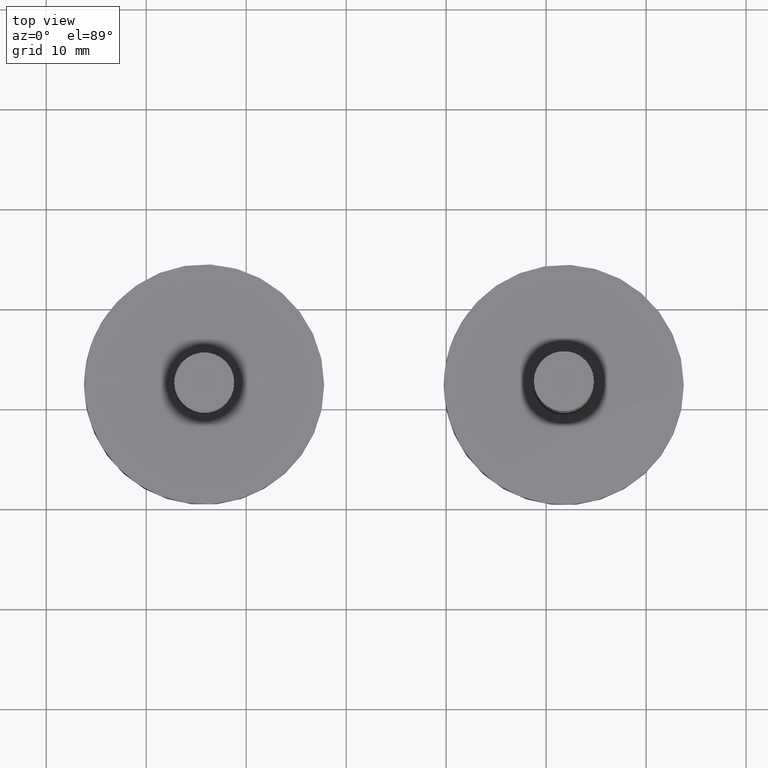
[diagram: clean part render]
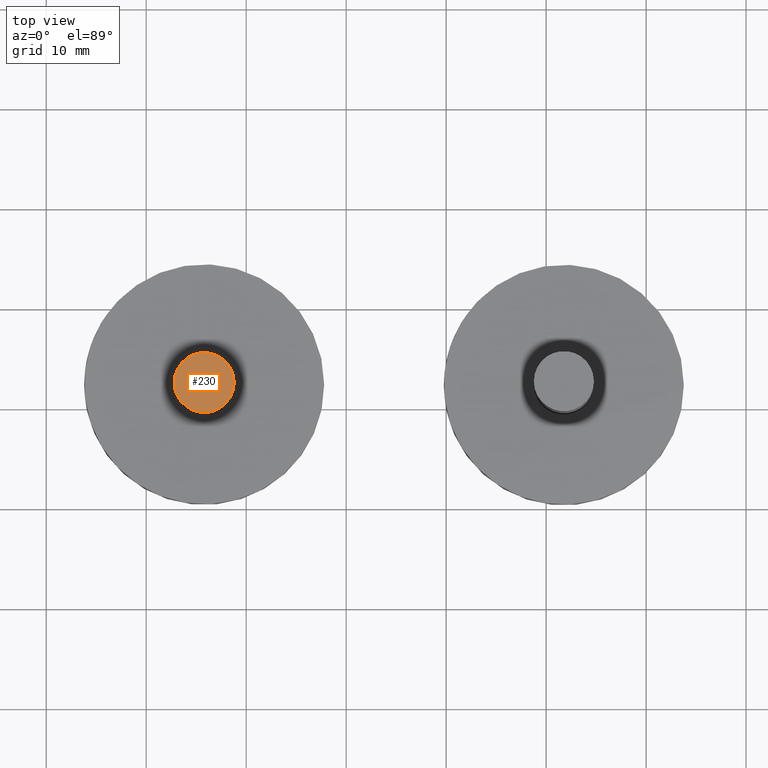
[diagram: same view with one face highlighted and labeled with its STEP entity id]
A machine part, top view. The second image highlights one B-rep face of the part: STEP entity #230.
In plain terms, the highlighted planar face has unit normal (0, 0, 1).
Its self-contained STEP definition (entity closure, byte-faithful):
#35=PLANE('',#257);
#64=FACE_OUTER_BOUND('',#87,.T.);
#87=EDGE_LOOP('',(#187));
#125=CIRCLE('',#255,3.);
#145=VERTEX_POINT('',#396);
#165=EDGE_CURVE('',#145,#145,#125,.T.);
#187=ORIENTED_EDGE('',*,*,#165,.T.);
#230=ADVANCED_FACE('',(#64),#35,.T.);
#255=AXIS2_PLACEMENT_3D('',#397,#304,#305);
#257=AXIS2_PLACEMENT_3D('',#400,#308,#309);
#304=DIRECTION('center_axis',(0.,0.,1.));
#305=DIRECTION('ref_axis',(-1.,0.,0.));
#308=DIRECTION('center_axis',(0.,0.,1.));
#309=DIRECTION('ref_axis',(1.,0.,0.));
#396=CARTESIAN_POINT('',(3.,3.67394039744206E-16,24.));
#397=CARTESIAN_POINT('Origin',(0.,0.,24.));
#400=CARTESIAN_POINT('Origin',(-1.84813812287733E-16,-7.70988211545247E-17,
24.));